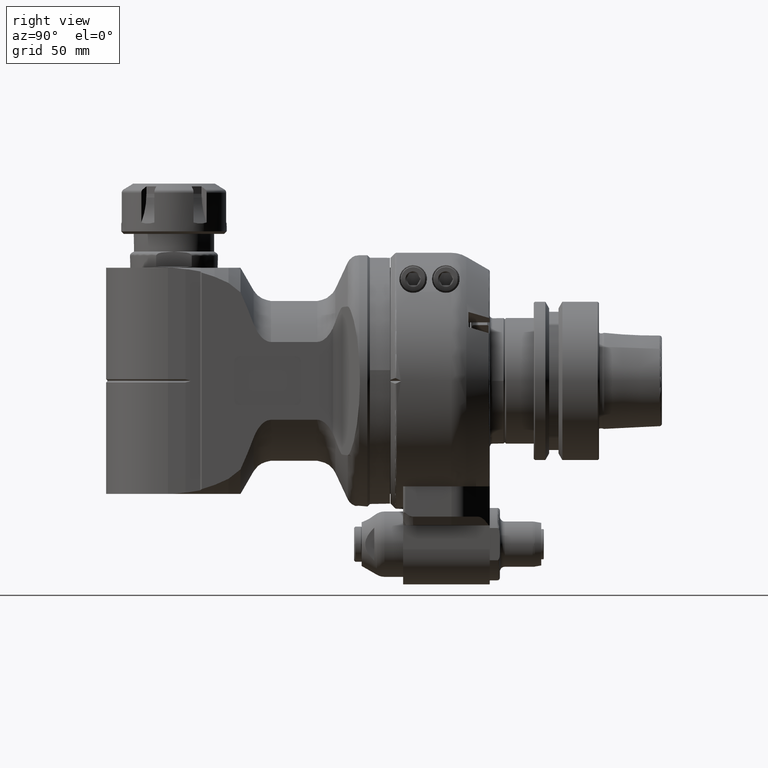
[diagram: clean part render]
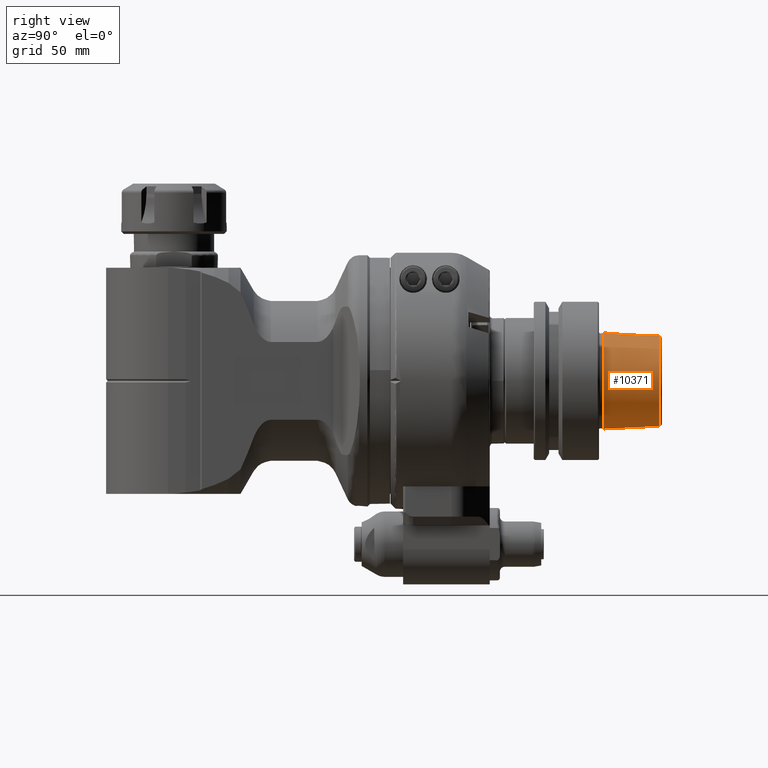
[diagram: same view with one face highlighted and labeled with its STEP entity id]
A machine part, right view. The second image highlights one B-rep face of the part: STEP entity #10371.
In plain terms, the highlighted conical surface has half-angle 2.868 deg.
Its self-contained STEP definition (entity closure, byte-faithful):
#194=CONICAL_SURFACE('',#11619,18.60245513308,0.0500570901447486);
#1286=CIRCLE('',#11616,18.05011334864);
#1288=CIRCLE('',#11618,18.05011334864);
#1289=CIRCLE('',#11620,19.15479691753);
#1290=CIRCLE('',#11621,19.15479691753);
#1900=FACE_OUTER_BOUND('',#2599,.T.);
#2599=EDGE_LOOP('',(#9312,#9313,#9314,#9315,#9316,#9317));
#3261=LINE('',#21049,#3915);
#3915=VECTOR('',#14611,18.60245513308);
#4888=VERTEX_POINT('',#21040);
#4889=VERTEX_POINT('',#21041);
#4890=VERTEX_POINT('',#21046);
#4891=VERTEX_POINT('',#21047);
#6373=EDGE_CURVE('',#4888,#4889,#1286,.T.);
#6375=EDGE_CURVE('',#4889,#4888,#1288,.T.);
#6376=EDGE_CURVE('',#4890,#4891,#1289,.T.);
#6377=EDGE_CURVE('',#4890,#4888,#3261,.T.);
#6378=EDGE_CURVE('',#4891,#4890,#1290,.T.);
#9312=ORIENTED_EDGE('',*,*,#6376,.F.);
#9313=ORIENTED_EDGE('',*,*,#6377,.T.);
#9314=ORIENTED_EDGE('',*,*,#6375,.F.);
#9315=ORIENTED_EDGE('',*,*,#6373,.F.);
#9316=ORIENTED_EDGE('',*,*,#6377,.F.);
#9317=ORIENTED_EDGE('',*,*,#6378,.F.);
#10371=ADVANCED_FACE('',(#1900),#194,.T.);
#11616=AXIS2_PLACEMENT_3D('',#21042,#14601,#14602);
#11618=AXIS2_PLACEMENT_3D('',#21044,#14605,#14606);
#11619=AXIS2_PLACEMENT_3D('',#21045,#14607,#14608);
#11620=AXIS2_PLACEMENT_3D('',#21048,#14609,#14610);
#11621=AXIS2_PLACEMENT_3D('',#21050,#14612,#14613);
#14601=DIRECTION('center_axis',(0.,1.,0.));
#14602=DIRECTION('ref_axis',(-0.707106781186548,0.,-0.707106781186548));
#14605=DIRECTION('center_axis',(0.,1.,0.));
#14606=DIRECTION('ref_axis',(-0.707106781186548,0.,-0.707106781186548));
#14607=DIRECTION('center_axis',(0.,-1.,0.));
#14608=DIRECTION('ref_axis',(-0.707106781186548,0.,-0.707106781186548));
#14609=DIRECTION('center_axis',(0.,-1.,0.));
#14610=DIRECTION('ref_axis',(0.707106781186548,0.,0.707106781186548));
#14611=DIRECTION('',(-0.0353809278297194,0.998747405449354,-0.0353809278297194));
#14612=DIRECTION('center_axis',(0.,-1.,0.));
#14613=DIRECTION('ref_axis',(0.707106781186548,0.,0.707106781186548));
#21040=CARTESIAN_POINT('',(12.76335755001,107.050036188,12.76335755001));
#21041=CARTESIAN_POINT('',(2.21050135366589E-15,107.050036188,-18.05011334864));
#21042=CARTESIAN_POINT('Origin',(0.,107.050036188,0.));
#21044=CARTESIAN_POINT('Origin',(0.,107.050036188,0.));
#21045=CARTESIAN_POINT('Origin',(0.,96.02501716999,0.));
#21046=CARTESIAN_POINT('',(13.54448679263,84.99999815199,13.54448679263));
#21047=CARTESIAN_POINT('',(-13.5444867926337,84.9999981519911,-13.5444867926337));
#21048=CARTESIAN_POINT('Origin',(0.,84.99999815199,0.));
#21049=CARTESIAN_POINT('',(13.1539221713194,96.02501716999,13.1539221713194));
#21050=CARTESIAN_POINT('Origin',(0.,84.99999815199,0.));